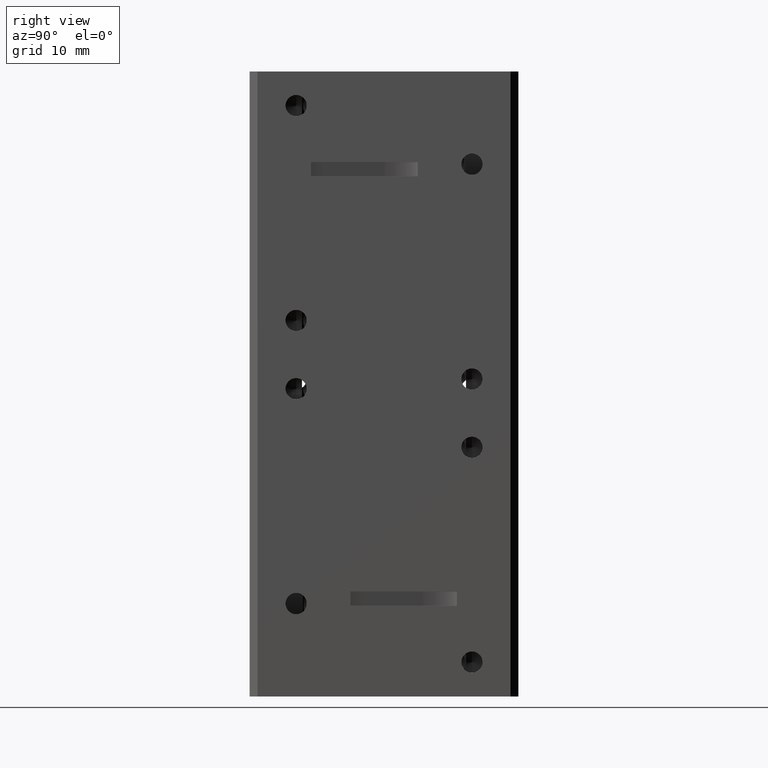
[diagram: clean part render]
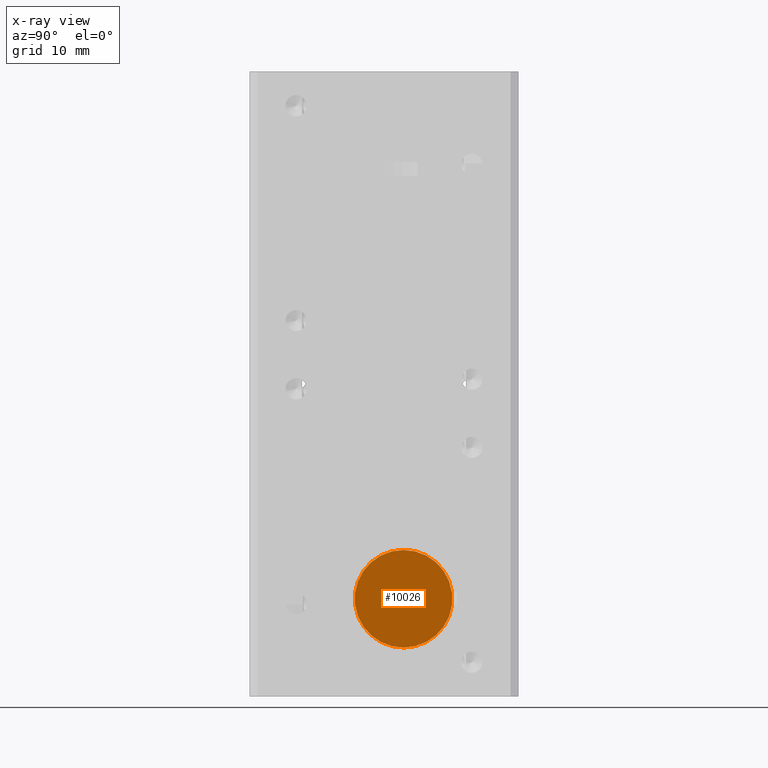
[diagram: x-ray — body ghosted, one internal face saturated and labeled with its STEP entity id]
A machine part, right view, then the same camera in x-ray: the body is ghosted and one INTERNAL B-rep face — a face not visible from any outside direction — is saturated and labeled: STEP entity #10026.
In plain terms, the highlighted planar face has unit normal (1, -0, 0).
Its self-contained STEP definition (entity closure, byte-faithful):
#1201 = ORIENTED_EDGE ( 'NONE', *, *, #15150, .T. ) ;
#1581 = CARTESIAN_POINT ( 'NONE',  ( 0.5474999999999998757, 0.1249999999999979183, -1.062500000000000000 ) ) ;
#1704 = CIRCLE ( 'NONE', #18016, 0.3125000000000000000 ) ;
#3332 = VERTEX_POINT ( 'NONE', #8554 ) ;
#4629 = PLANE ( 'NONE',  #8125 ) ;
#6596 = EDGE_CURVE ( 'NONE', #3332, #9560, #1704, .T. ) ;
#8125 = AXIS2_PLACEMENT_3D ( 'NONE', #15079, #9251, #13573 ) ;
#8372 = CARTESIAN_POINT ( 'NONE',  ( 0.5474999999999998757, 0.1249999999999980987, -1.375000000000000000 ) ) ;
#8554 = CARTESIAN_POINT ( 'NONE',  ( 0.5474999999999998757, 0.1249999999999980987, -1.687500000000000000 ) ) ;
#9251 = DIRECTION ( 'NONE',  ( 1.000000000000000000, -3.491481338843132961E-15, 0.000000000000000000 ) ) ;
#9560 = VERTEX_POINT ( 'NONE', #1581 ) ;
#9615 = DIRECTION ( 'NONE',  ( 0.000000000000000000, 0.000000000000000000, -1.000000000000000000 ) ) ;
#9716 = DIRECTION ( 'NONE',  ( -1.000000000000000000, 3.491481338843133355E-15, 0.000000000000000000 ) ) ;
#10026 = ADVANCED_FACE ( 'NONE', ( #11640 ), #4629, .F. ) ;
#10117 = AXIS2_PLACEMENT_3D ( 'NONE', #18062, #15445, #9615 ) ;
#11640 = FACE_OUTER_BOUND ( 'NONE', #17091, .T. ) ;
#13472 = CIRCLE ( 'NONE', #10117, 0.3125000000000000000 ) ;
#13573 = DIRECTION ( 'NONE',  ( 0.000000000000000000, 0.000000000000000000, 1.000000000000000000 ) ) ;
#14171 = ORIENTED_EDGE ( 'NONE', *, *, #6596, .T. ) ;
#14233 = DIRECTION ( 'NONE',  ( 0.000000000000000000, 0.000000000000000000, -1.000000000000000000 ) ) ;
#15079 = CARTESIAN_POINT ( 'NONE',  ( 0.5474999999999998757, 0.1249999999999980987, -1.375000000000000000 ) ) ;
#15150 = EDGE_CURVE ( 'NONE', #9560, #3332, #13472, .T. ) ;
#15445 = DIRECTION ( 'NONE',  ( -1.000000000000000000, 3.491481338843133355E-15, 0.000000000000000000 ) ) ;
#17091 = EDGE_LOOP ( 'NONE', ( #14171, #1201 ) ) ;
#18016 = AXIS2_PLACEMENT_3D ( 'NONE', #8372, #9716, #14233 ) ;
#18062 = CARTESIAN_POINT ( 'NONE',  ( 0.5474999999999998757, 0.1249999999999980987, -1.375000000000000000 ) ) ;